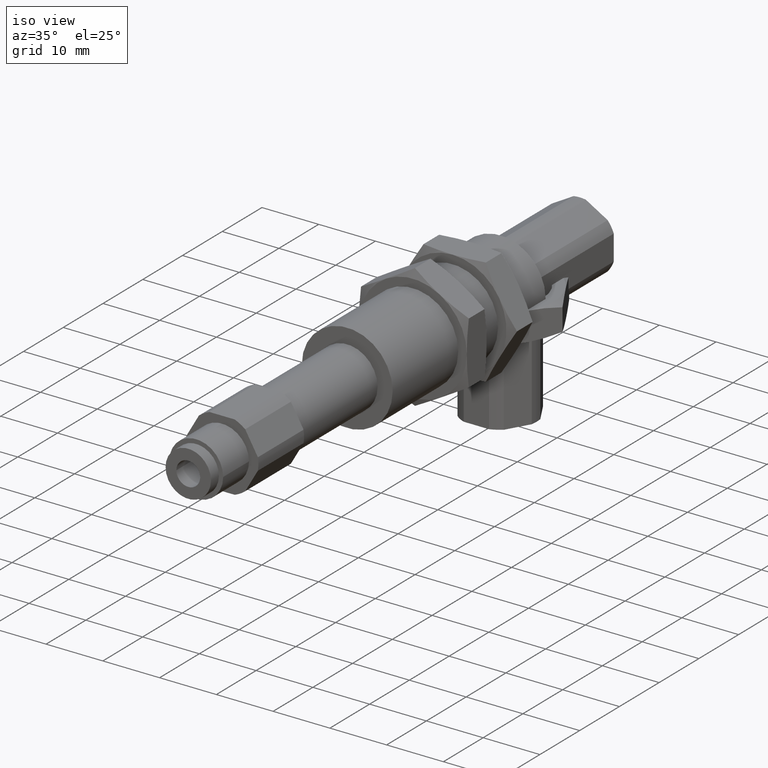
[diagram: clean part render]
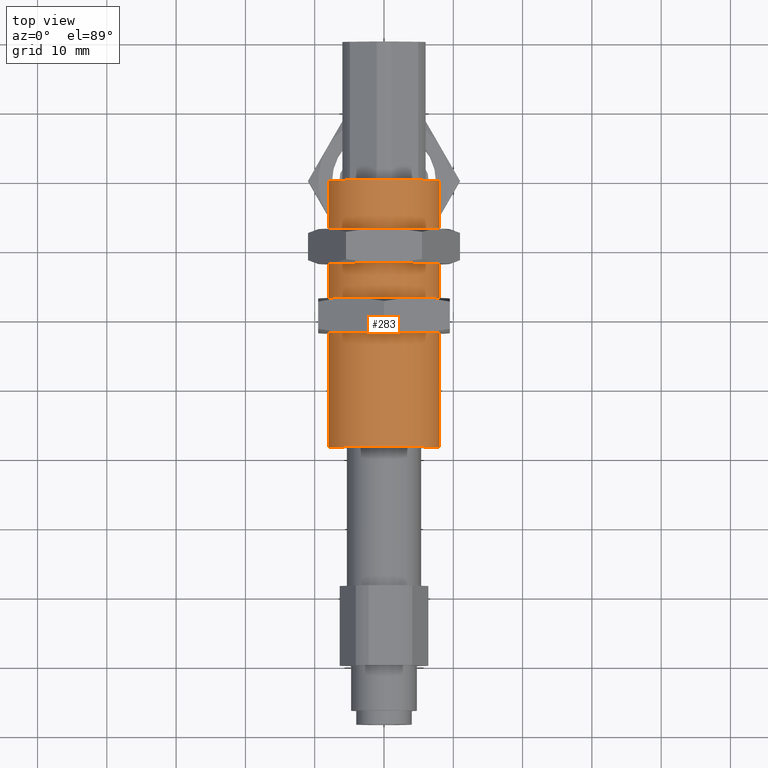
[diagram: tour spotlight — one face highlighted and labeled with its STEP entity id]
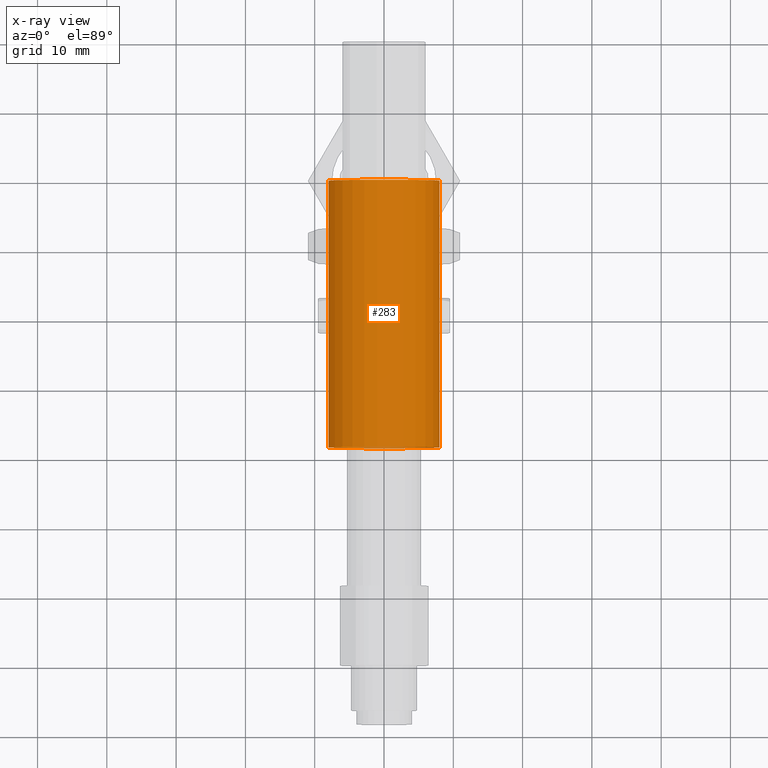
[diagram: x-ray of the same camera — body ghosted, this tour face saturated]
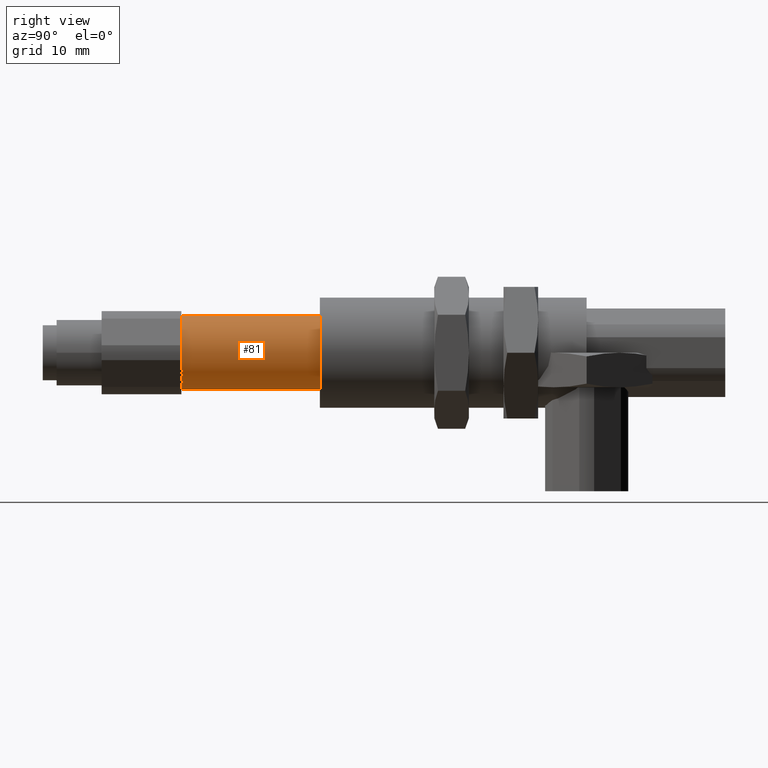
[diagram: tour spotlight — one face highlighted and labeled with its STEP entity id]
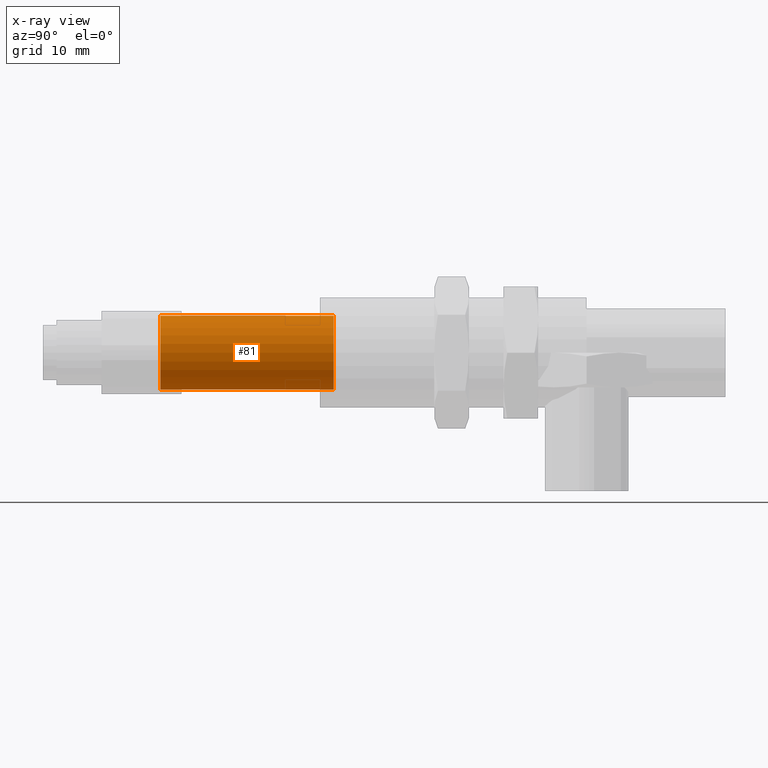
[diagram: x-ray of the same camera — body ghosted, this tour face saturated]
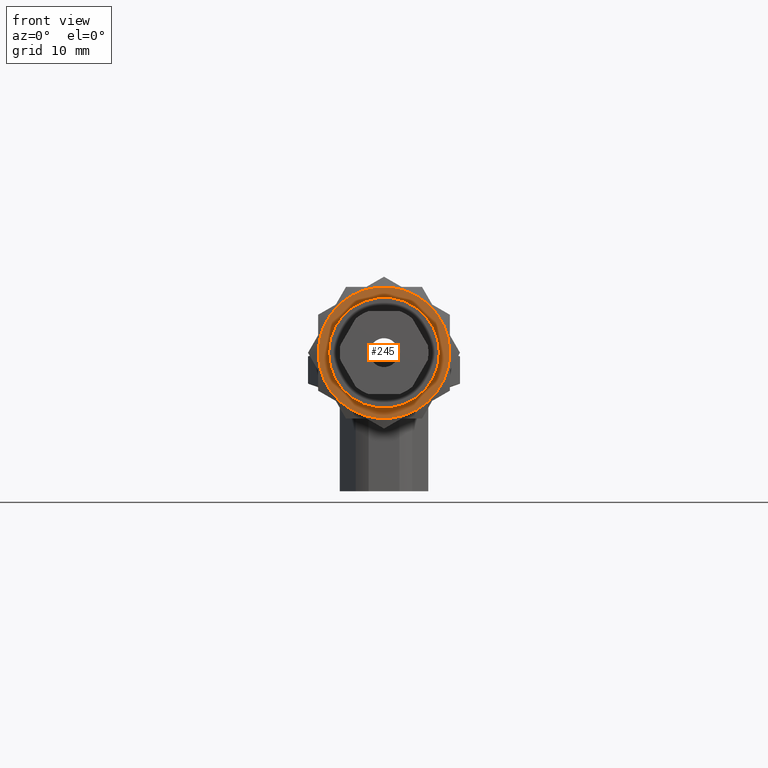
[diagram: tour spotlight — one face highlighted and labeled with its STEP entity id]
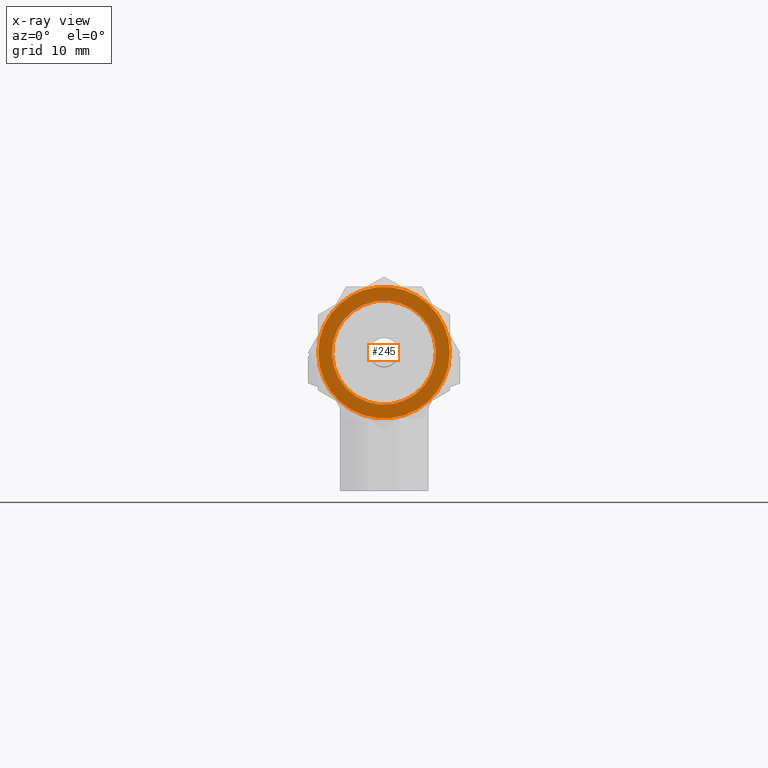
[diagram: x-ray of the same camera — body ghosted, this tour face saturated]
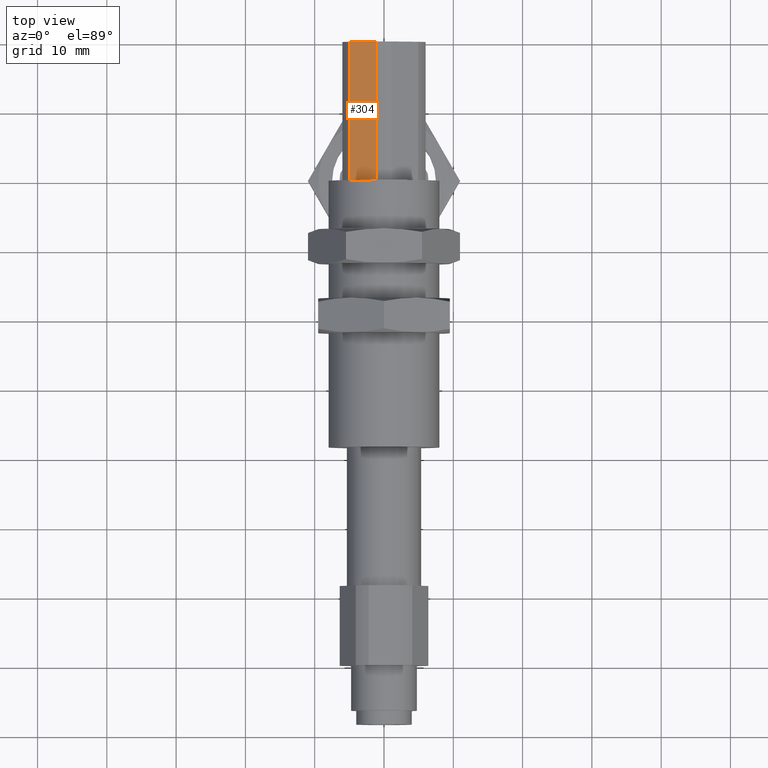
[diagram: tour spotlight — one face highlighted and labeled with its STEP entity id]
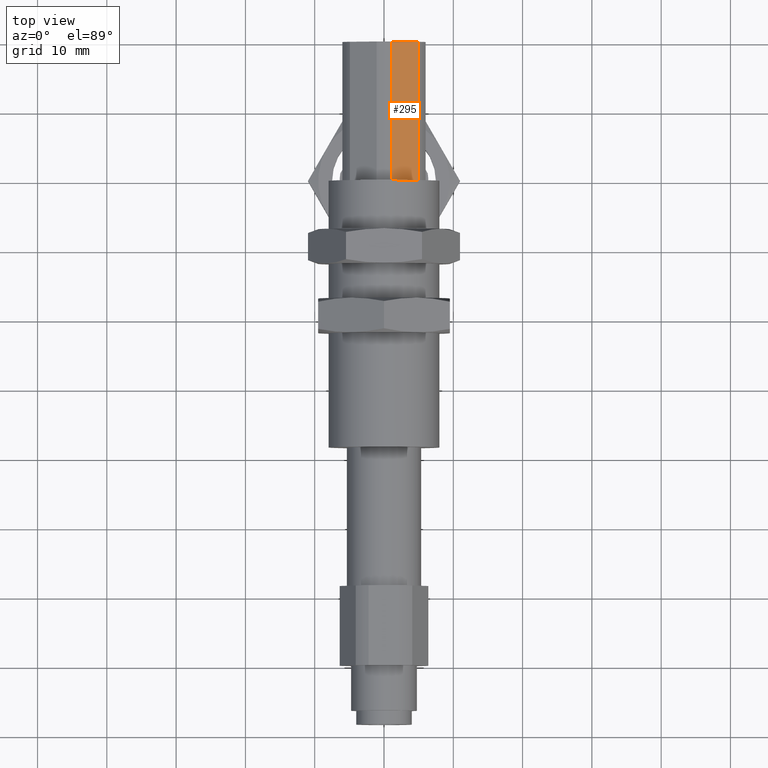
[diagram: tour spotlight — one face highlighted and labeled with its STEP entity id]
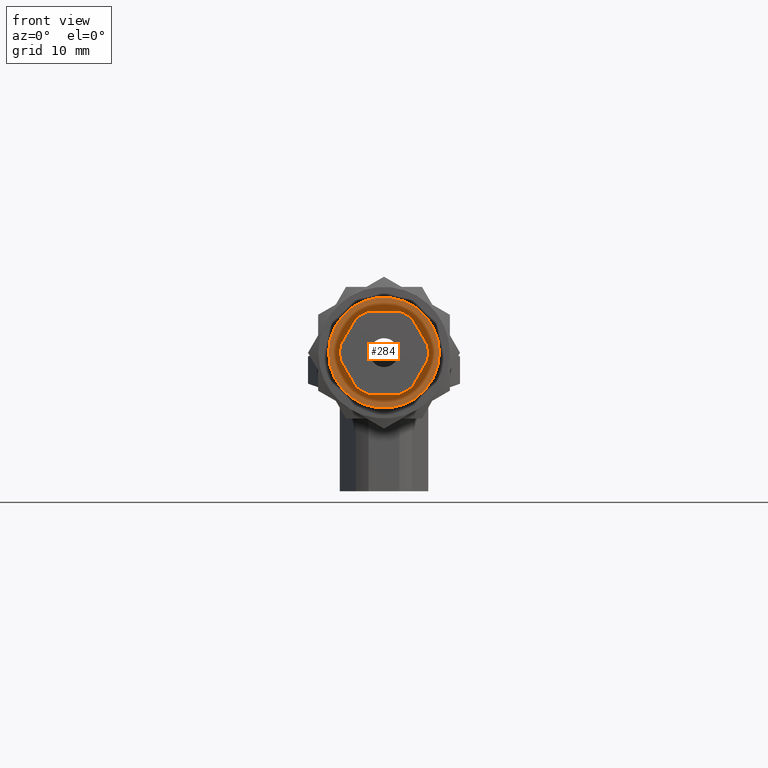
[diagram: tour spotlight — one face highlighted and labeled with its STEP entity id]
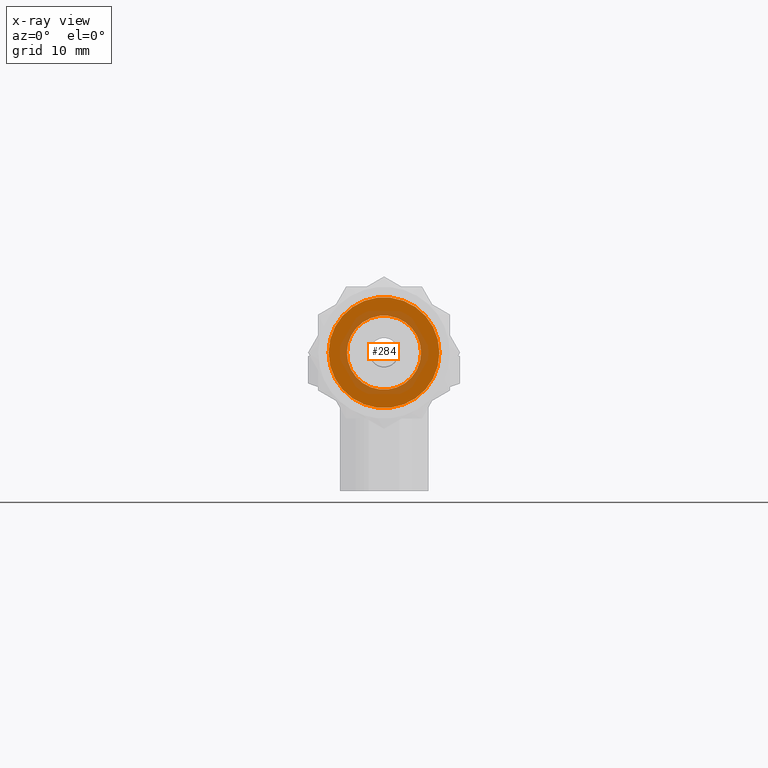
[diagram: x-ray of the same camera — body ghosted, this tour face saturated]
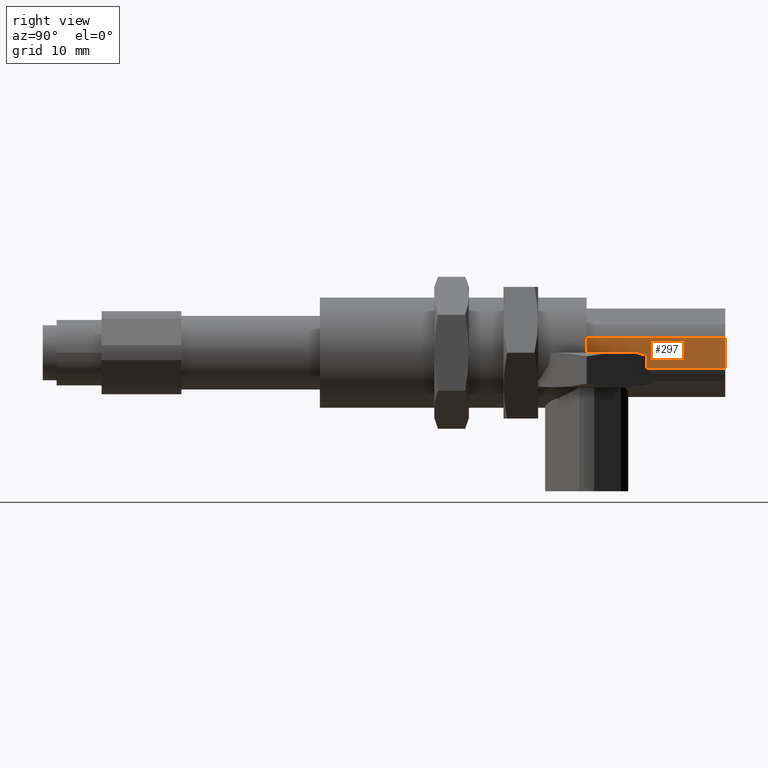
[diagram: tour spotlight — one face highlighted and labeled with its STEP entity id]
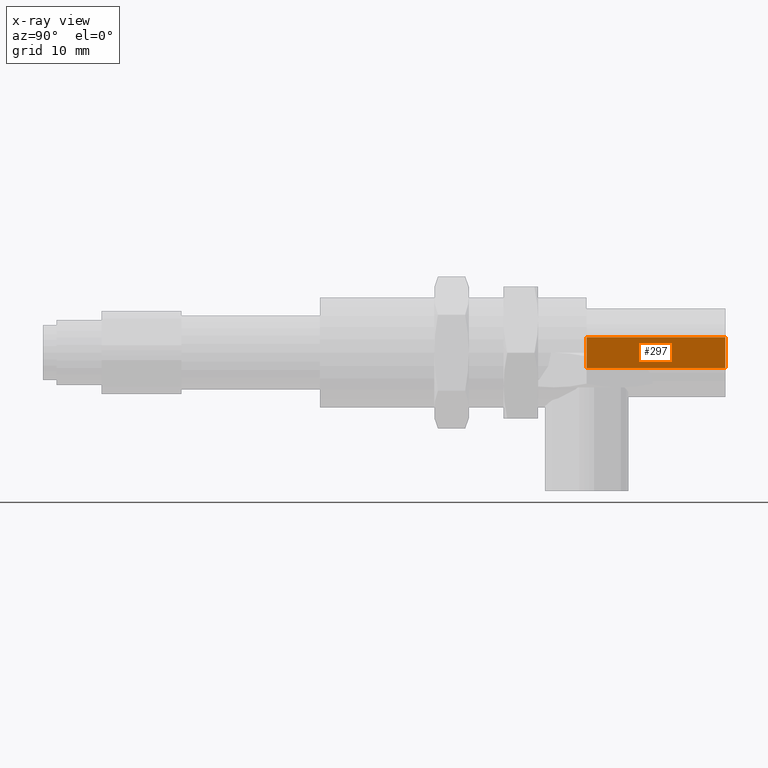
[diagram: x-ray of the same camera — body ghosted, this tour face saturated]
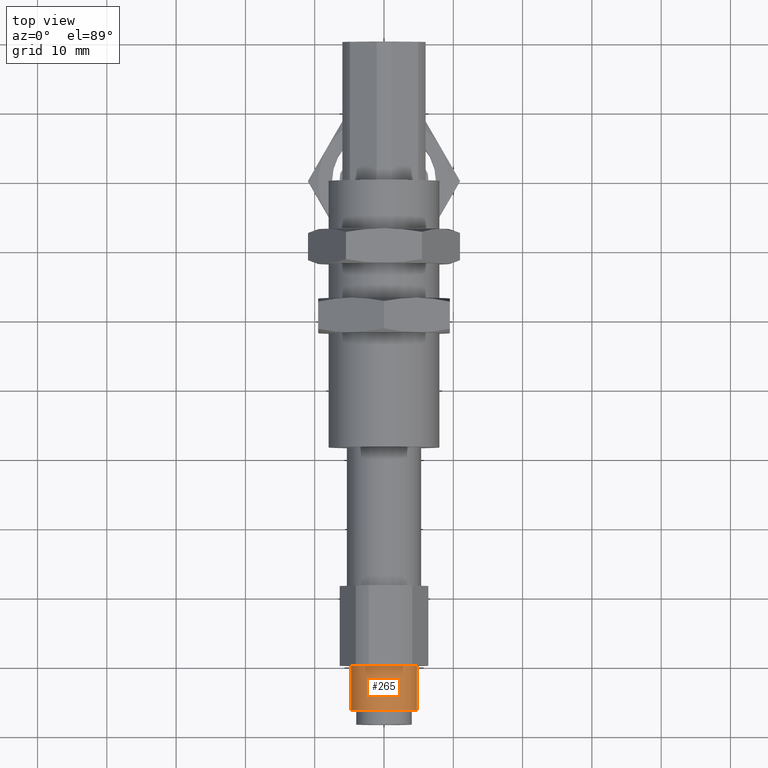
[diagram: tour spotlight — one face highlighted and labeled with its STEP entity id]
A machine part: a face-by-face anatomy tour. The part has 159 B-rep faces; the first image is the clean iso view, then the 8 largest visible faces are spotlighted one at a time (largest first), each with its STEP entity span.

Face 1 — top view, entity #283. An x-ray twin of the same camera follows (body ghosted, this face saturated) — the face is partly hidden behind the body. In plain terms, the highlighted cylindrical surface (bore or boss wall) has radius 8 mm, axis along (0, -1, 0).
Definition (entity closure, byte-faithful):
#283 = ADVANCED_FACE( 'NONE', ( #441, #442 ), #443, .T. );
#441 = FACE_OUTER_BOUND( '', #598, .T. );
#442 = FACE_OUTER_BOUND( '', #599, .T. );
#443 = CYLINDRICAL_SURFACE( '', #600, 8.00000000000000 );
#598 = EDGE_LOOP( '', ( #963 ) );
#599 = EDGE_LOOP( '', ( #964 ) );
#600 = AXIS2_PLACEMENT_3D( '', #965, #966, #967 );
#963 = ORIENTED_EDGE( '', *, *, #1229, .F. );
#964 = ORIENTED_EDGE( '', *, *, #1230, .T. );
#965 = CARTESIAN_POINT( '', ( 0.000000000000000, 0.000000000000000, 0.000000000000000 ) );
#966 = DIRECTION( '', ( 1.12644381556935E-016, -1.00000000000000, -0.000000000000000 ) );
#967 = DIRECTION( '', ( -1.00000000000000, -1.12644381556935E-016, 0.000000000000000 ) );
#1229 = EDGE_CURVE( 'NONE', #1439, #1439, #1440, .T. );
#1230 = EDGE_CURVE( 'NONE', #1441, #1441, #1442, .T. );
#1439 = VERTEX_POINT( '', #1807 );
#1440 = CIRCLE( '', #1808, 8.00000000000000 );
#1441 = VERTEX_POINT( '', #1809 );
#1442 = CIRCLE( '', #1810, 8.00000000000000 );
#1807 = CARTESIAN_POINT( '', ( -8.00000000000000, 7.70371977754894E-031, 0.000000000000000 ) );
#1808 = AXIS2_PLACEMENT_3D( '', #2033, #2034, #2035 );
#1809 = CARTESIAN_POINT( '', ( -8.00000000000000, -38.5000000000000, 0.000000000000000 ) );
#1810 = AXIS2_PLACEMENT_3D( '', #2036, #2037, #2038 );
#2033 = CARTESIAN_POINT( '', ( -1.01510053570756E-031, 9.01155052455484E-016, 0.000000000000000 ) );
#2034 = DIRECTION( '', ( -1.12644381556935E-016, 1.00000000000000, 0.000000000000000 ) );
#2035 = DIRECTION( '', ( -1.00000000000000, -1.12644381556935E-016, 0.000000000000000 ) );
#2036 = CARTESIAN_POINT( '', ( 4.33680868994201E-015, -38.5000000000000, 0.000000000000000 ) );
#2037 = DIRECTION( '', ( 0.000000000000000, 1.00000000000000, 0.000000000000000 ) );
#2038 = DIRECTION( '', ( -1.00000000000000, 0.000000000000000, 0.000000000000000 ) );

Face 2 — right view, entity #81. An x-ray twin of the same camera follows (body ghosted, this face saturated) — the face is partly hidden behind the body. In plain terms, the highlighted cylindrical surface (bore or boss wall) has radius 5.35 mm, axis along (0, -1, 0).
Definition (entity closure, byte-faithful):
#81 = ADVANCED_FACE( 'NONE', ( #138, #139 ), #140, .T. );
#138 = FACE_OUTER_BOUND( '', #203, .T. );
#139 = FACE_OUTER_BOUND( '', #204, .T. );
#140 = CYLINDRICAL_SURFACE( '', #205, 5.35000000000000 );
#203 = EDGE_LOOP( '', ( #319 ) );
#204 = EDGE_LOOP( '', ( #320 ) );
#205 = AXIS2_PLACEMENT_3D( '', #321, #322, #323 );
#319 = ORIENTED_EDGE( '', *, *, #501, .F. );
#320 = ORIENTED_EDGE( '', *, *, #502, .T. );
#321 = CARTESIAN_POINT( '', ( 0.000000000000000, 0.000000000000000, 0.000000000000000 ) );
#322 = DIRECTION( '', ( 1.21541135259521E-016, -1.00000000000000, -0.000000000000000 ) );
#323 = DIRECTION( '', ( -1.00000000000000, -1.21541135259521E-016, 0.000000000000000 ) );
#501 = EDGE_CURVE( 'NONE', #661, #661, #662, .T. );
#502 = EDGE_CURVE( 'NONE', #663, #663, #664, .T. );
#661 = VERTEX_POINT( '', #1128 );
#662 = CIRCLE( '', #1129, 5.35000000000000 );
#663 = VERTEX_POINT( '', #1130 );
#664 = CIRCLE( '', #1131, 5.35000000000000 );
#1128 = CARTESIAN_POINT( '', ( -5.34999999999999, -43.5000000000000, 0.000000000000000 ) );
#1129 = AXIS2_PLACEMENT_3D( '', #1282, #1283, #1284 );
#1130 = CARTESIAN_POINT( '', ( -5.34999999999999, -68.5000000000000, 0.000000000000000 ) );
#1131 = AXIS2_PLACEMENT_3D( '', #1285, #1286, #1287 );
#1282 = CARTESIAN_POINT( '', ( 5.28703938378919E-015, -43.5000000000000, 0.000000000000000 ) );
#1283 = DIRECTION( '', ( 0.000000000000000, 1.00000000000000, 0.000000000000000 ) );
#1284 = DIRECTION( '', ( -1.00000000000000, 0.000000000000000, 0.000000000000000 ) );
#1285 = CARTESIAN_POINT( '', ( 8.32556776527722E-015, -68.5000000000000, 0.000000000000000 ) );
#1286 = DIRECTION( '', ( 0.000000000000000, 1.00000000000000, 0.000000000000000 ) );
#1287 = DIRECTION( '', ( -1.00000000000000, 0.000000000000000, 0.000000000000000 ) );

Face 3 — front view, entity #245. An x-ray twin of the same camera follows (body ghosted, this face saturated) — the face is partly hidden behind the body. In plain terms, the highlighted planar face has unit normal (-0, 1, -0).
Definition (entity closure, byte-faithful):
#245 = ADVANCED_FACE( 'NONE', ( #356, #357 ), #358, .F. );
#356 = FACE_OUTER_BOUND( '', #513, .T. );
#357 = FACE_BOUND( '', #514, .T. );
#358 = PLANE( '', #515 );
#513 = EDGE_LOOP( '', ( #682, #683, #684, #685, #686, #687 ) );
#514 = EDGE_LOOP( '', ( #688 ) );
#515 = AXIS2_PLACEMENT_3D( '', #689, #690, #691 );
#682 = ORIENTED_EDGE( '', *, *, #1146, .T. );
#683 = ORIENTED_EDGE( '', *, *, #1147, .T. );
#684 = ORIENTED_EDGE( '', *, *, #1148, .T. );
#685 = ORIENTED_EDGE( '', *, *, #1149, .T. );
#686 = ORIENTED_EDGE( '', *, *, #1150, .T. );
#687 = ORIENTED_EDGE( '', *, *, #1151, .T. );
#688 = ORIENTED_EDGE( '', *, *, #1152, .F. );
#689 = CARTESIAN_POINT( '', ( 10.9696551146029, 0.000000000000000, 0.000000000000000 ) );
#690 = DIRECTION( '', ( 0.000000000000000, 0.000000000000000, -1.00000000000000 ) );
#691 = DIRECTION( '', ( 0.000000000000000, -1.00000000000000, 0.000000000000000 ) );
#1146 = EDGE_CURVE( 'NONE', #1303, #1304, #1305, .T. );
#1147 = EDGE_CURVE( 'NONE', #1304, #1306, #1307, .T. );
#1148 = EDGE_CURVE( 'NONE', #1306, #1308, #1309, .T. );
#1149 = EDGE_CURVE( 'NONE', #1308, #1310, #1311, .T. );
#1150 = EDGE_CURVE( 'NONE', #1310, #1312, #1313, .T. );
#1151 = EDGE_CURVE( 'NONE', #1312, #1303, #1314, .T. );
#1152 = EDGE_CURVE( 'NONE', #1315, #1315, #1316, .T. );
#1303 = VERTEX_POINT( 'NONE', #1531 );
#1304 = VERTEX_POINT( 'NONE', #1532 );
#1305 = CIRCLE( '', #1533, 9.50000000000000 );
#1306 = VERTEX_POINT( 'NONE', #1534 );
#1307 = CIRCLE( '', #1535, 9.50000000000000 );
#1308 = VERTEX_POINT( 'NONE', #1536 );
#1309 = CIRCLE( '', #1537, 9.50000000000000 );
#1310 = VERTEX_POINT( 'NONE', #1538 );
#1311 = CIRCLE( '', #1539, 9.50000000000000 );
#1312 = VERTEX_POINT( 'NONE', #1540 );
#1313 = CIRCLE( '', #1541, 9.50000000000000 );
#1314 = CIRCLE( '', #1542, 9.50000000000000 );
#1315 = VERTEX_POINT( '', #1543 );
#1316 = CIRCLE( '', #1544, 7.50000000000000 );
#1531 = CARTESIAN_POINT( '', ( 1.50231459873716E-015, 9.50000000000000, 1.73067577924375E-015 ) );
#1532 = CARTESIAN_POINT( '', ( -8.22724133595217, 4.75000000000000, 1.06922587138195E-015 ) );
#1533 = AXIS2_PLACEMENT_3D( '', #1910, #1911, #1912 );
#1534 = CARTESIAN_POINT( '', ( -8.22724133595217, -4.75000000000000, -2.88072765632978E-016 ) );
#1535 = AXIS2_PLACEMENT_3D( '', #1913, #1914, #1915 );
#1536 = CARTESIAN_POINT( '', ( 3.00462919747432E-015, -9.50000000000000, 2.08769638125641E-015 ) );
#1537 = AXIS2_PLACEMENT_3D( '', #1916, #1917, #1918 );
#1538 = CARTESIAN_POINT( '', ( 8.22724133595217, -4.75000000000000, 1.06922587138195E-015 ) );
#1539 = AXIS2_PLACEMENT_3D( '', #1919, #1920, #1921 );
#1540 = CARTESIAN_POINT( '', ( 8.22724133595217, 4.75000000000000, -4.92217440151123E-016 ) );
#1541 = AXIS2_PLACEMENT_3D( '', #1922, #1923, #1924 );
#1542 = AXIS2_PLACEMENT_3D( '', #1925, #1926, #1927 );
#1543 = CARTESIAN_POINT( '', ( 7.50000000000000, 0.000000000000000, -2.44921270764476E-016 ) );
#1544 = AXIS2_PLACEMENT_3D( '', #1928, #1929, #1930 );
#1910 = CARTESIAN_POINT( '', ( 0.000000000000000, 0.000000000000000, 0.000000000000000 ) );
#1911 = DIRECTION( '', ( 0.000000000000000, 0.000000000000000, 1.00000000000000 ) );
#1912 = DIRECTION( '', ( -1.00000000000000, 0.000000000000000, 0.000000000000000 ) );
#1913 = CARTESIAN_POINT( '', ( 0.000000000000000, 0.000000000000000, 0.000000000000000 ) );
#1914 = DIRECTION( '', ( 0.000000000000000, 0.000000000000000, 1.00000000000000 ) );
#1915 = DIRECTION( '', ( -1.00000000000000, 0.000000000000000, 0.000000000000000 ) );
#1916 = CARTESIAN_POINT( '', ( 0.000000000000000, 0.000000000000000, 0.000000000000000 ) );
#1917 = DIRECTION( '', ( 0.000000000000000, 0.000000000000000, 1.00000000000000 ) );
#1918 = DIRECTION( '', ( -1.00000000000000, 0.000000000000000, 0.000000000000000 ) );
#1919 = CARTESIAN_POINT( '', ( 0.000000000000000, 0.000000000000000, 0.000000000000000 ) );
#1920 = DIRECTION( '', ( 0.000000000000000, 0.000000000000000, 1.00000000000000 ) );
#1921 = DIRECTION( '', ( -1.00000000000000, 0.000000000000000, 0.000000000000000 ) );
#1922 = CARTESIAN_POINT( '', ( 0.000000000000000, 0.000000000000000, 0.000000000000000 ) );
#1923 = DIRECTION( '', ( 0.000000000000000, 0.000000000000000, 1.00000000000000 ) );
#1924 = DIRECTION( '', ( -1.00000000000000, 1.77635683940025E-015, 0.000000000000000 ) );
#1925 = CARTESIAN_POINT( '', ( 0.000000000000000, 0.000000000000000, 0.000000000000000 ) );
#1926 = DIRECTION( '', ( 0.000000000000000, 0.000000000000000, 1.00000000000000 ) );
#1927 = DIRECTION( '', ( 1.00000000000000, 0.000000000000000, 0.000000000000000 ) );
#1928 = CARTESIAN_POINT( '', ( 0.000000000000000, 0.000000000000000, -2.44921270764476E-016 ) );
#1929 = DIRECTION( '', ( 0.000000000000000, 0.000000000000000, 1.00000000000000 ) );
#1930 = DIRECTION( '', ( 1.00000000000000, 0.000000000000000, 0.000000000000000 ) );

Face 4 — top view, entity #304. In plain terms, the highlighted planar face has unit normal (-0.5, -0, 0.866).
Definition (entity closure, byte-faithful):
#304 = ADVANCED_FACE( 'NONE', ( #493 ), #494, .T. );
#493 = FACE_OUTER_BOUND( '', #650, .T. );
#494 = PLANE( '', #651 );
#650 = EDGE_LOOP( '', ( #1112, #1113, #1114, #1115 ) );
#651 = AXIS2_PLACEMENT_3D( '', #1116, #1117, #1118 );
#1112 = ORIENTED_EDGE( '', *, *, #1265, .F. );
#1113 = ORIENTED_EDGE( '', *, *, #1245, .F. );
#1114 = ORIENTED_EDGE( '', *, *, #1260, .F. );
#1115 = ORIENTED_EDGE( '', *, *, #1270, .T. );
#1116 = CARTESIAN_POINT( '', ( 6.92820323027551, 7.11563971917264E-015, -20.0000000000000 ) );
#1117 = DIRECTION( '', ( 0.866025403784439, 0.500000000000000, 0.000000000000000 ) );
#1118 = DIRECTION( '', ( 0.000000000000000, 0.000000000000000, -1.00000000000000 ) );
#1245 = EDGE_CURVE( 'NONE', #1469, #1471, #1472, .T. );
#1260 = EDGE_CURVE( 'NONE', #1495, #1469, #1497, .T. );
#1265 = EDGE_CURVE( 'NONE', #1471, #1504, #1505, .T. );
#1270 = EDGE_CURVE( 'NONE', #1495, #1504, #1512, .T. );
#1469 = VERTEX_POINT( 'NONE', #1843 );
#1471 = VERTEX_POINT( 'NONE', #1845 );
#1472 = LINE( '', #1846, #1847 );
#1495 = VERTEX_POINT( 'NONE', #1877 );
#1497 = LINE( '', #1879, #1880 );
#1504 = VERTEX_POINT( 'NONE', #1890 );
#1505 = LINE( '', #1891, #1892 );
#1512 = LINE( '', #1901, #1902 );
#1843 = CARTESIAN_POINT( '', ( 6.30970529527264, 1.07126984780141, 0.000000000000000 ) );
#1845 = CARTESIAN_POINT( '', ( 4.08259955014062, 4.92873015219860, 0.000000000000000 ) );
#1846 = CARTESIAN_POINT( '', ( 6.92820323027551, 7.11563971917264E-015, 0.000000000000000 ) );
#1847 = VECTOR( '', #2069, 1000.00000000000 );
#1877 = CARTESIAN_POINT( '', ( 6.30970529527264, 1.07126984780141, -20.0000000000000 ) );
#1879 = CARTESIAN_POINT( '', ( 6.30970529527264, 1.07126984780141, 0.000000000000000 ) );
#1880 = VECTOR( '', #2098, 1000.00000000000 );
#1890 = CARTESIAN_POINT( '', ( 4.08259955014062, 4.92873015219859, -20.0000000000000 ) );
#1891 = CARTESIAN_POINT( '', ( 4.08259955014062, 4.92873015219859, 0.000000000000000 ) );
#1892 = VECTOR( '', #2105, 1000.00000000000 );
#1901 = CARTESIAN_POINT( '', ( 6.92820323027551, 7.11563971917264E-015, -20.0000000000000 ) );
#1902 = VECTOR( '', #2114, 1000.00000000000 );
#2069 = DIRECTION( '', ( -0.500000000000000, 0.866025403784439, 0.000000000000000 ) );
#2098 = DIRECTION( '', ( 0.000000000000000, 0.000000000000000, 1.00000000000000 ) );
#2105 = DIRECTION( '', ( 0.000000000000000, 0.000000000000000, -1.00000000000000 ) );
#2114 = DIRECTION( '', ( -0.500000000000000, 0.866025403784439, 0.000000000000000 ) );

Face 5 — top view, entity #295. In plain terms, the highlighted planar face has unit normal (0.5, 0, 0.866).
Definition (entity closure, byte-faithful):
#295 = ADVANCED_FACE( 'NONE', ( #474 ), #475, .T. );
#474 = FACE_OUTER_BOUND( '', #631, .T. );
#475 = PLANE( '', #632 );
#631 = EDGE_LOOP( '', ( #1040, #1041, #1042, #1043 ) );
#632 = AXIS2_PLACEMENT_3D( '', #1044, #1045, #1046 );
#1040 = ORIENTED_EDGE( '', *, *, #1256, .F. );
#1041 = ORIENTED_EDGE( '', *, *, #1243, .F. );
#1042 = ORIENTED_EDGE( '', *, *, #1257, .F. );
#1043 = ORIENTED_EDGE( '', *, *, #1258, .T. );
#1044 = CARTESIAN_POINT( '', ( 3.46410161513775, -6.00000000000000, -20.0000000000000 ) );
#1045 = DIRECTION( '', ( 0.866025403784439, -0.500000000000000, 0.000000000000000 ) );
#1046 = DIRECTION( '', ( 0.000000000000000, 0.000000000000000, -1.00000000000000 ) );
#1243 = EDGE_CURVE( 'NONE', #1464, #1467, #1468, .T. );
#1256 = EDGE_CURVE( 'NONE', #1467, #1490, #1491, .T. );
#1257 = EDGE_CURVE( 'NONE', #1492, #1464, #1493, .T. );
#1258 = EDGE_CURVE( 'NONE', #1492, #1490, #1494, .T. );
#1464 = VERTEX_POINT( 'NONE', #1837 );
#1467 = VERTEX_POINT( 'NONE', #1840 );
#1468 = LINE( '', #1841, #1842 );
#1490 = VERTEX_POINT( 'NONE', #1869 );
#1491 = LINE( '', #1870, #1871 );
#1492 = VERTEX_POINT( 'NONE', #1872 );
#1493 = LINE( '', #1873, #1874 );
#1494 = LINE( '', #1875, #1876 );
#1837 = CARTESIAN_POINT( '', ( 4.08259955014063, -4.92873015219859, 0.000000000000000 ) );
#1840 = CARTESIAN_POINT( '', ( 6.30970529527264, -1.07126984780140, 0.000000000000000 ) );
#1841 = CARTESIAN_POINT( '', ( 3.46410161513775, -6.00000000000000, 0.000000000000000 ) );
#1842 = VECTOR( '', #2065, 1000.00000000000 );
#1869 = CARTESIAN_POINT( '', ( 6.30970529527264, -1.07126984780140, -20.0000000000000 ) );
#1870 = CARTESIAN_POINT( '', ( 6.30970529527264, -1.07126984780140, 0.000000000000000 ) );
#1871 = VECTOR( '', #2092, 1000.00000000000 );
#1872 = CARTESIAN_POINT( '', ( 4.08259955014063, -4.92873015219859, -20.0000000000000 ) );
#1873 = CARTESIAN_POINT( '', ( 4.08259955014063, -4.92873015219859, 0.000000000000000 ) );
#1874 = VECTOR( '', #2093, 1000.00000000000 );
#1875 = CARTESIAN_POINT( '', ( 3.46410161513775, -6.00000000000000, -20.0000000000000 ) );
#1876 = VECTOR( '', #2094, 1000.00000000000 );
#2065 = DIRECTION( '', ( 0.500000000000000, 0.866025403784439, 0.000000000000000 ) );
#2092 = DIRECTION( '', ( 0.000000000000000, 0.000000000000000, -1.00000000000000 ) );
#2093 = DIRECTION( '', ( 0.000000000000000, 0.000000000000000, 1.00000000000000 ) );
#2094 = DIRECTION( '', ( 0.500000000000000, 0.866025403784439, 0.000000000000000 ) );

Face 6 — front view, entity #284. An x-ray twin of the same camera follows (body ghosted, this face saturated) — the face is partly hidden behind the body. In plain terms, the highlighted planar face has unit normal (0, -1, 0).
Definition (entity closure, byte-faithful):
#284 = ADVANCED_FACE( 'NONE', ( #444, #445 ), #446, .T. );
#444 = FACE_OUTER_BOUND( '', #601, .T. );
#445 = FACE_BOUND( '', #602, .T. );
#446 = PLANE( '', #603 );
#601 = EDGE_LOOP( '', ( #968 ) );
#602 = EDGE_LOOP( '', ( #969 ) );
#603 = AXIS2_PLACEMENT_3D( '', #970, #971, #972 );
#968 = ORIENTED_EDGE( '', *, *, #1230, .F. );
#969 = ORIENTED_EDGE( '', *, *, #1231, .T. );
#970 = CARTESIAN_POINT( '', ( -5.35000000000000, -38.5000000000000, 0.000000000000000 ) );
#971 = DIRECTION( '', ( 1.12644381556935E-016, -1.00000000000000, 0.000000000000000 ) );
#972 = DIRECTION( '', ( 0.000000000000000, 0.000000000000000, -1.00000000000000 ) );
#1230 = EDGE_CURVE( 'NONE', #1441, #1441, #1442, .T. );
#1231 = EDGE_CURVE( 'NONE', #1443, #1443, #1444, .T. );
#1441 = VERTEX_POINT( '', #1809 );
#1442 = CIRCLE( '', #1810, 8.00000000000000 );
#1443 = VERTEX_POINT( '', #1811 );
#1444 = CIRCLE( '', #1812, 5.35000000000000 );
#1809 = CARTESIAN_POINT( '', ( -8.00000000000000, -38.5000000000000, 0.000000000000000 ) );
#1810 = AXIS2_PLACEMENT_3D( '', #2036, #2037, #2038 );
#1811 = CARTESIAN_POINT( '', ( -5.35000000000000, -38.5000000000000, 0.000000000000000 ) );
#1812 = AXIS2_PLACEMENT_3D( '', #2039, #2040, #2041 );
#2036 = CARTESIAN_POINT( '', ( 4.33680868994201E-015, -38.5000000000000, 0.000000000000000 ) );
#2037 = DIRECTION( '', ( 0.000000000000000, 1.00000000000000, 0.000000000000000 ) );
#2038 = DIRECTION( '', ( -1.00000000000000, 0.000000000000000, 0.000000000000000 ) );
#2039 = CARTESIAN_POINT( '', ( 4.33680868994201E-015, -38.5000000000000, 0.000000000000000 ) );
#2040 = DIRECTION( '', ( 0.000000000000000, 1.00000000000000, 0.000000000000000 ) );
#2041 = DIRECTION( '', ( -1.00000000000000, 0.000000000000000, 0.000000000000000 ) );

Face 7 — right view, entity #297. An x-ray twin of the same camera follows (body ghosted, this face saturated) — the face is partly hidden behind the body. In plain terms, the highlighted planar face has unit normal (1, 0, 0).
Definition (entity closure, byte-faithful):
#297 = ADVANCED_FACE( 'NONE', ( #478 ), #479, .T. );
#478 = FACE_OUTER_BOUND( '', #635, .T. );
#479 = PLANE( '', #636 );
#635 = EDGE_LOOP( '', ( #1054, #1055, #1056, #1057 ) );
#636 = AXIS2_PLACEMENT_3D( '', #1058, #1059, #1060 );
#1054 = ORIENTED_EDGE( '', *, *, #1261, .F. );
#1055 = ORIENTED_EDGE( '', *, *, #1251, .F. );
#1056 = ORIENTED_EDGE( '', *, *, #1253, .F. );
#1057 = ORIENTED_EDGE( '', *, *, #1262, .T. );
#1058 = CARTESIAN_POINT( '', ( -3.46410161513774, -6.00000000000000, -20.0000000000000 ) );
#1059 = DIRECTION( '', ( 2.50385766456193E-016, -1.00000000000000, 0.000000000000000 ) );
#1060 = DIRECTION( '', ( 0.000000000000000, 0.000000000000000, -1.00000000000000 ) );
#1251 = EDGE_CURVE( 'NONE', #1480, #1465, #1482, .T. );
#1253 = EDGE_CURVE( 'NONE', #1485, #1480, #1486, .T. );
#1261 = EDGE_CURVE( 'NONE', #1465, #1498, #1499, .T. );
#1262 = EDGE_CURVE( 'NONE', #1485, #1498, #1500, .T. );
#1465 = VERTEX_POINT( 'NONE', #1838 );
#1480 = VERTEX_POINT( 'NONE', #1857 );
#1482 = LINE( '', #1859, #1860 );
#1485 = VERTEX_POINT( 'NONE', #1863 );
#1486 = LINE( '', #1864, #1865 );
#1498 = VERTEX_POINT( 'NONE', #1881 );
#1499 = LINE( '', #1882, #1883 );
#1500 = LINE( '', #1884, #1885 );
#1838 = CARTESIAN_POINT( '', ( 2.22710574513201, -6.00000000000000, 0.000000000000000 ) );
#1857 = CARTESIAN_POINT( '', ( -2.22710574513201, -6.00000000000000, 0.000000000000000 ) );
#1859 = CARTESIAN_POINT( '', ( -3.46410161513774, -6.00000000000000, 0.000000000000000 ) );
#1860 = VECTOR( '', #2081, 1000.00000000000 );
#1863 = CARTESIAN_POINT( '', ( -2.22710574513201, -6.00000000000000, -20.0000000000000 ) );
#1864 = CARTESIAN_POINT( '', ( -2.22710574513201, -6.00000000000000, 0.000000000000000 ) );
#1865 = VECTOR( '', #2085, 1000.00000000000 );
#1881 = CARTESIAN_POINT( '', ( 2.22710574513201, -6.00000000000000, -20.0000000000000 ) );
#1882 = CARTESIAN_POINT( '', ( 2.22710574513201, -6.00000000000000, 0.000000000000000 ) );
#1883 = VECTOR( '', #2099, 1000.00000000000 );
#1884 = CARTESIAN_POINT( '', ( -3.46410161513774, -6.00000000000000, -20.0000000000000 ) );
#1885 = VECTOR( '', #2100, 1000.00000000000 );
#2081 = DIRECTION( '', ( 1.00000000000000, 2.50385766456193E-016, 0.000000000000000 ) );
#2085 = DIRECTION( '', ( 0.000000000000000, 0.000000000000000, 1.00000000000000 ) );
#2099 = DIRECTION( '', ( 0.000000000000000, 0.000000000000000, -1.00000000000000 ) );
#2100 = DIRECTION( '', ( 1.00000000000000, 2.50385766456193E-016, 0.000000000000000 ) );

Face 8 — top view, entity #265. In plain terms, the highlighted cylindrical surface (bore or boss wall) has radius 4.75 mm, axis along (0, -1, -0).
Definition (entity closure, byte-faithful):
#265 = ADVANCED_FACE( 'NONE', ( #399, #400 ), #401, .T. );
#399 = FACE_OUTER_BOUND( '', #556, .T. );
#400 = FACE_OUTER_BOUND( '', #557, .T. );
#401 = CYLINDRICAL_SURFACE( '', #558, 4.75000000000000 );
#556 = EDGE_LOOP( '', ( #827 ) );
#557 = EDGE_LOOP( '', ( #828 ) );
#558 = AXIS2_PLACEMENT_3D( '', #829, #830, #831 );
#827 = ORIENTED_EDGE( '', *, *, #1187, .T. );
#828 = ORIENTED_EDGE( '', *, *, #1188, .F. );
#829 = CARTESIAN_POINT( '', ( 0.000000000000000, 0.000000000000000, -18.0000000000000 ) );
#830 = DIRECTION( '', ( -0.000000000000000, -0.000000000000000, -1.00000000000000 ) );
#831 = DIRECTION( '', ( 1.00000000000000, 0.000000000000000, 0.000000000000000 ) );
#1187 = EDGE_CURVE( 'NONE', #1367, #1367, #1368, .T. );
#1188 = EDGE_CURVE( 'NONE', #1369, #1369, #1370, .T. );
#1367 = VERTEX_POINT( '', #1711 );
#1368 = CIRCLE( '', #1712, 4.75000000000000 );
#1369 = VERTEX_POINT( '', #1713 );
#1370 = CIRCLE( '', #1714, 4.75000000000000 );
#1711 = CARTESIAN_POINT( '', ( 4.75000000000000, 0.000000000000000, -11.5000000000000 ) );
#1712 = AXIS2_PLACEMENT_3D( '', #1955, #1956, #1957 );
#1713 = CARTESIAN_POINT( '', ( -4.75000000000000, 0.000000000000000, -18.0000000000000 ) );
#1714 = AXIS2_PLACEMENT_3D( '', #1958, #1959, #1960 );
#1955 = CARTESIAN_POINT( '', ( 0.000000000000000, 0.000000000000000, -11.5000000000000 ) );
#1956 = DIRECTION( '', ( 0.000000000000000, 0.000000000000000, -1.00000000000000 ) );
#1957 = DIRECTION( '', ( 1.00000000000000, 0.000000000000000, 0.000000000000000 ) );
#1958 = CARTESIAN_POINT( '', ( 0.000000000000000, 0.000000000000000, -18.0000000000000 ) );
#1959 = DIRECTION( '', ( 0.000000000000000, 0.000000000000000, -1.00000000000000 ) );
#1960 = DIRECTION( '', ( -1.00000000000000, 0.000000000000000, 0.000000000000000 ) );